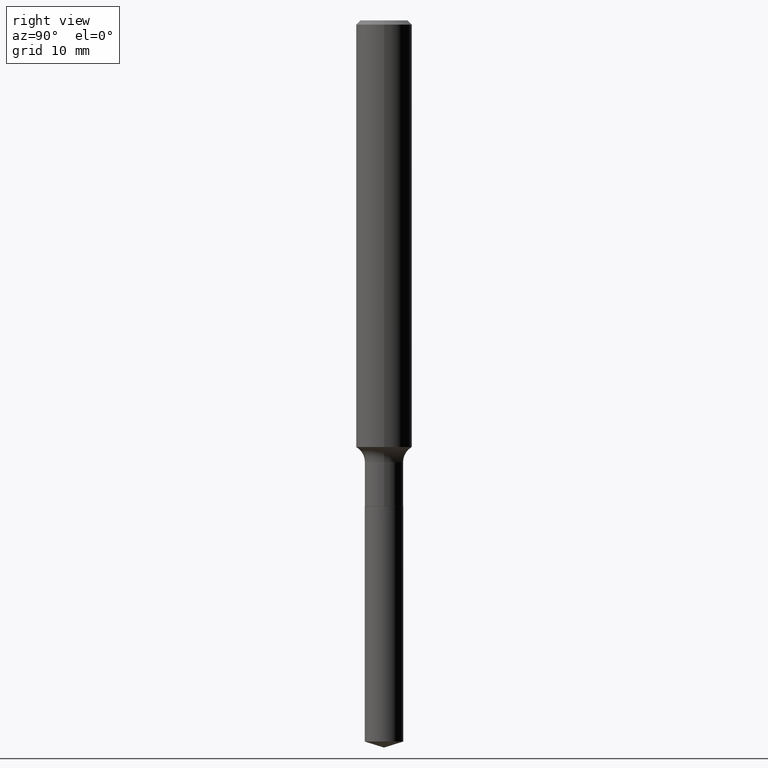
[diagram: clean part render]
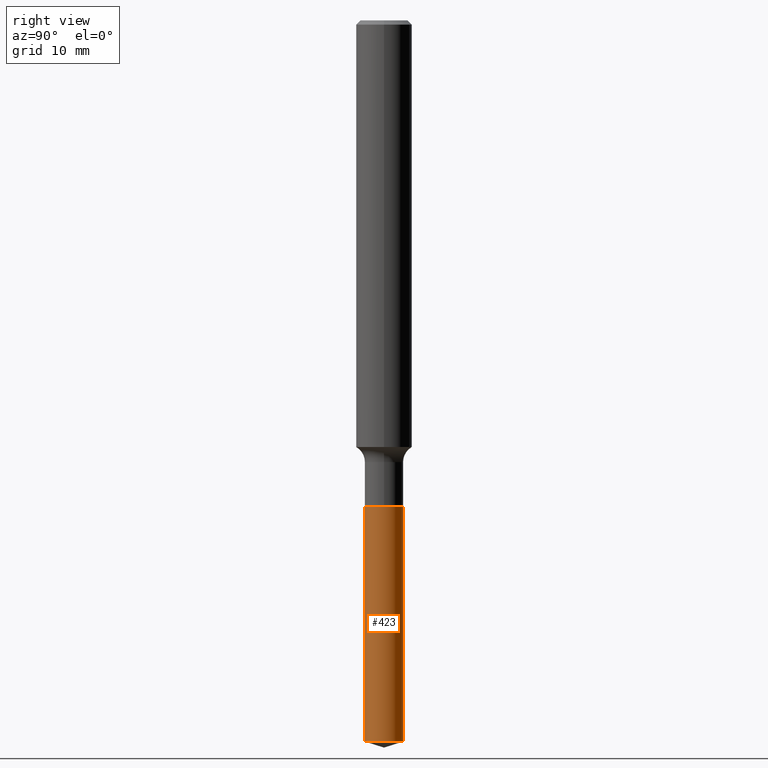
[diagram: same view with one face highlighted and labeled with its STEP entity id]
A machine part, right view. The second image highlights one B-rep face of the part: STEP entity #423.
In plain terms, the highlighted cylindrical surface (edge-blend (fillet) strip) has radius 2.1831 mm, axis along (-0, 0, 1).
Its self-contained STEP definition (entity closure, byte-faithful):
#8 = CARTESIAN_POINT ( 'NONE',  ( 5.311313700153497401E-29, -7.583148319833427758E-15, -2.171899999999999942 ) ) ;
#33 = CARTESIAN_POINT ( 'NONE',  ( -6.001856421470813725E-16, -0.08595000000000757590, -2.171899999999999498 ) ) ;
#35 = CARTESIAN_POINT ( 'NONE',  ( 6.107114813858590523E-16, 0.08594999999999240747, -2.171899999999999942 ) ) ;
#40 = VERTEX_POINT ( 'NONE', #74 ) ;
#54 = VERTEX_POINT ( 'NONE', #33 ) ;
#74 = CARTESIAN_POINT ( 'NONE',  ( -6.001856421470559317E-16, -0.08595000000001129514, -3.222900069095851805 ) ) ;
#76 = CARTESIAN_POINT ( 'NONE',  ( 6.107114813858851833E-16, 0.08594999999998877149, -3.222900069095853137 ) ) ;
#104 = FACE_OUTER_BOUND ( 'NONE', #339, .T. ) ;
#117 = LINE ( 'NONE', #199, #379 ) ;
#151 = CIRCLE ( 'NONE', #166, 0.08594999999999998475 ) ;
#163 = DIRECTION ( 'NONE',  ( -2.445356642153314140E-29, 3.491641964120695911E-15, 1.000000000000000000 ) ) ;
#166 = AXIS2_PLACEMENT_3D ( 'NONE', #8, #277, #422 ) ;
#173 = CARTESIAN_POINT ( 'NONE',  ( 6.107114813858848875E-16, 0.08594999999999240747, -2.171899999999999942 ) ) ;
#185 = ORIENTED_EDGE ( 'NONE', *, *, #454, .T. ) ;
#199 = CARTESIAN_POINT ( 'NONE',  ( -6.001856421470813725E-16, -0.08595000000000757590, -2.171899999999999498 ) ) ;
#228 = EDGE_CURVE ( 'NONE', #40, #54, #117, .T. ) ;
#236 = EDGE_CURVE ( 'NONE', #54, #329, #151, .T. ) ;
#263 = CYLINDRICAL_SURFACE ( 'NONE', #352, 0.08594999999999998475 ) ;
#267 = EDGE_CURVE ( 'NONE', #40, #483, #428, .T. ) ;
#271 = LINE ( 'NONE', #35, #359 ) ;
#277 = DIRECTION ( 'NONE',  ( -2.445356642153314140E-29, 3.491641964120695911E-15, 1.000000000000000000 ) ) ;
#318 = DIRECTION ( 'NONE',  ( -2.445356642153314420E-29, 3.491641964120695911E-15, 1.000000000000000000 ) ) ;
#329 = VERTEX_POINT ( 'NONE', #173 ) ;
#339 = EDGE_LOOP ( 'NONE', ( #377, #185, #368, #478 ) ) ;
#352 = AXIS2_PLACEMENT_3D ( 'NONE', #443, #492, #445 ) ;
#359 = VECTOR ( 'NONE', #371, 39.37007874015748143 ) ;
#368 = ORIENTED_EDGE ( 'NONE', *, *, #236, .F. ) ;
#371 = DIRECTION ( 'NONE',  ( -2.445356642153314420E-29, 3.491641964120695911E-15, 1.000000000000000000 ) ) ;
#377 = ORIENTED_EDGE ( 'NONE', *, *, #267, .T. ) ;
#379 = VECTOR ( 'NONE', #318, 39.37007874015748143 ) ;
#385 = CARTESIAN_POINT ( 'NONE',  ( 7.881383700020633069E-29, -1.125286426538225716E-14, -3.222900069095852249 ) ) ;
#411 = AXIS2_PLACEMENT_3D ( 'NONE', #385, #163, #464 ) ;
#422 = DIRECTION ( 'NONE',  ( -6.982962677686266711E-15, -1.000000000000000000, 3.178415350394722068E-15 ) ) ;
#423 = ADVANCED_FACE ( 'NONE', ( #104 ), #263, .T. ) ;
#428 = CIRCLE ( 'NONE', #411, 0.08594999999999998475 ) ;
#443 = CARTESIAN_POINT ( 'NONE',  ( 5.311313700153497401E-29, -7.583148319833427758E-15, -2.171899999999999942 ) ) ;
#445 = DIRECTION ( 'NONE',  ( -6.982962677686266711E-15, -1.000000000000000000, 3.178415350394722068E-15 ) ) ;
#454 = EDGE_CURVE ( 'NONE', #483, #329, #271, .T. ) ;
#464 = DIRECTION ( 'NONE',  ( -6.982962677686266711E-15, -1.000000000000000000, 6.356830700789444137E-15 ) ) ;
#478 = ORIENTED_EDGE ( 'NONE', *, *, #228, .F. ) ;
#483 = VERTEX_POINT ( 'NONE', #76 ) ;
#492 = DIRECTION ( 'NONE',  ( -2.445356642153314140E-29, 3.491641964120695911E-15, 1.000000000000000000 ) ) ;